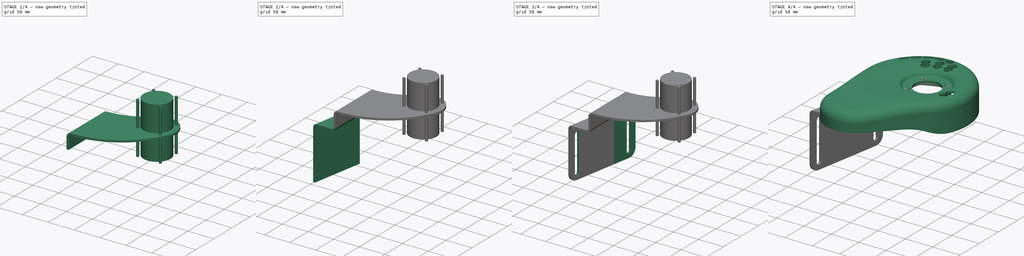
[diagram: build sequence overview — one tinted view per stage of 4, left to right]
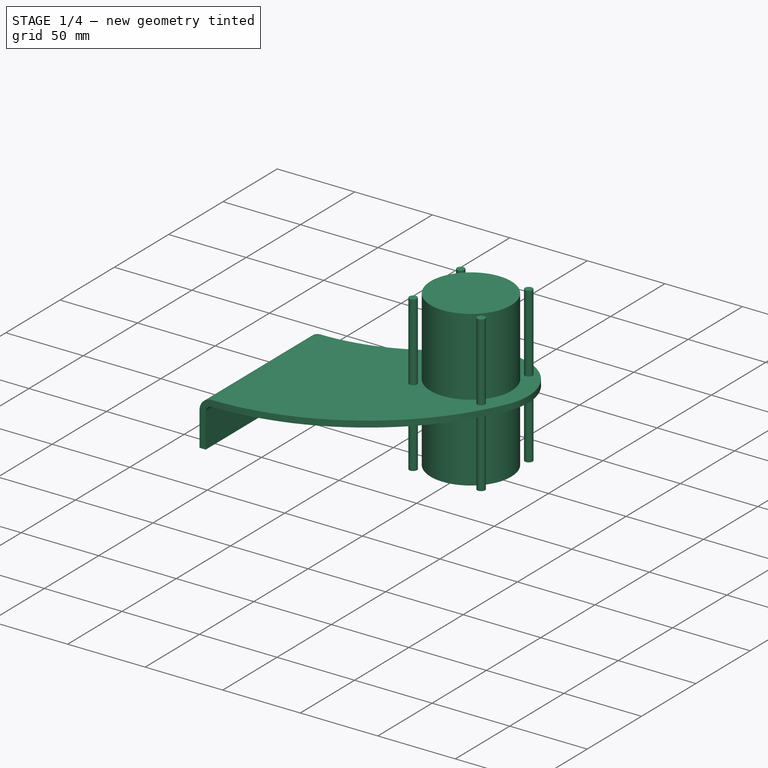
[diagram: stage 1 of 4 — iso view after this stage's code; geometry added in this stage tinted green]
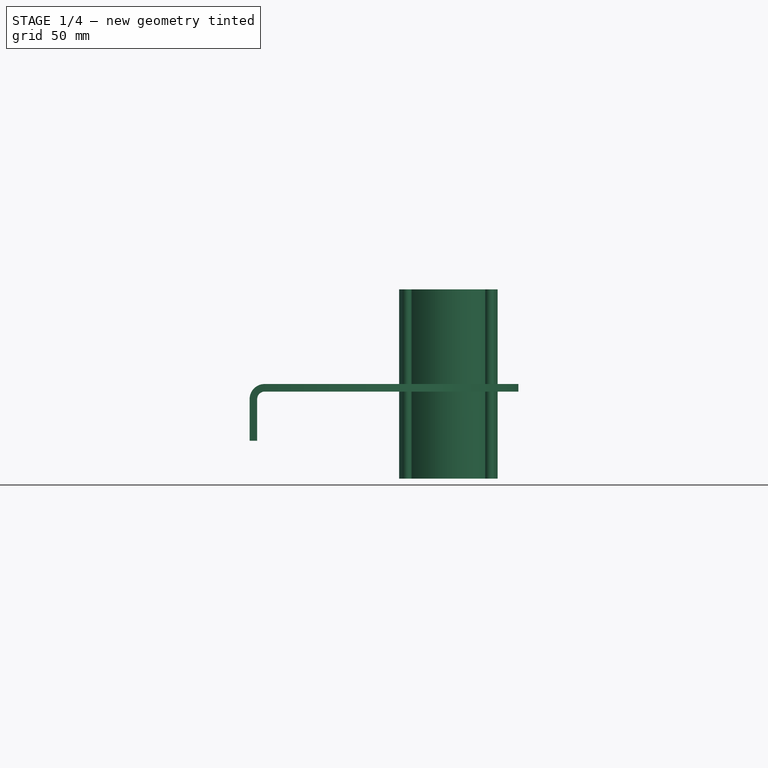
[diagram: stage 1 of 4 — front view after this stage's code; geometry added in this stage tinted green]
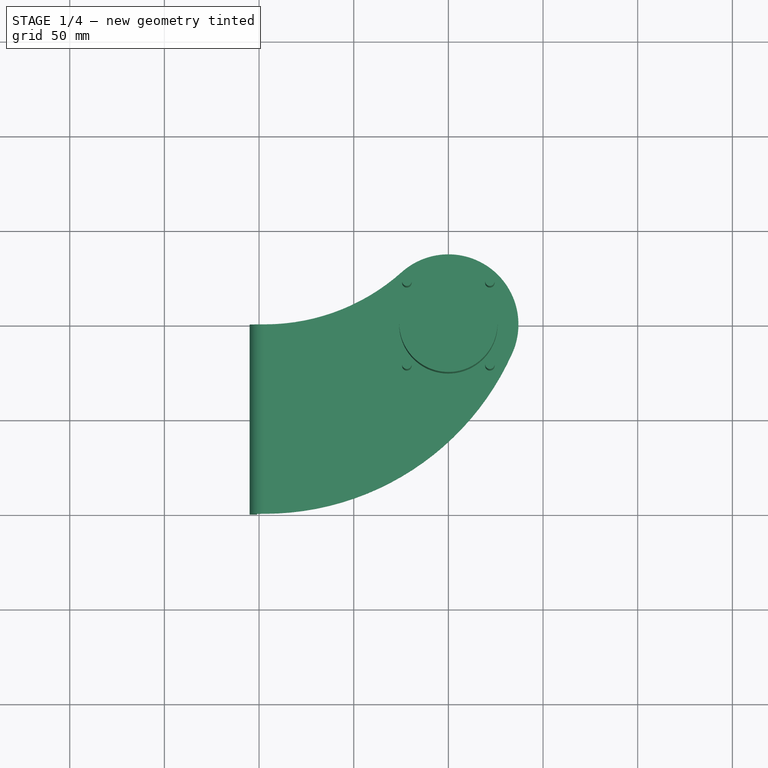
[diagram: stage 1 of 4 — top view after this stage's code; geometry added in this stage tinted green]
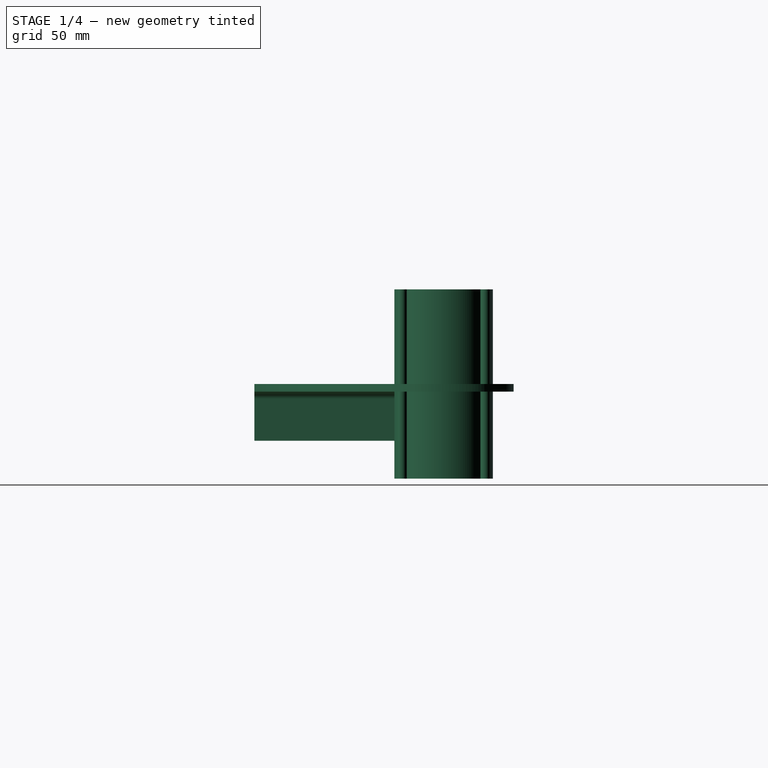
[diagram: stage 1 of 4 — right view after this stage's code; geometry added in this stage tinted green]
FCSTD DOCUMENT  (FreeCAD 0.17R6700 (Git))
Label: mounting_metal
License: All rights reserved
LicenseURL: http://en.wikipedia.org/wiki/All_rights_reserved
objects: Part::FeaturePython×5, Sketcher::SketchObject×5, Part::Feature×4, PartDesign::Pocket×3, PartDesign::Pad×2, App::DocumentObjectGroup×1, Part::Fillet×1, Part::Cut×1
note: 26 computed .brp shape members not serialized (recipe doc carries the construction recipe); baked Part::Feature solids carry a one-line shape summary decoded from their .brp

FEATURE [Sketcher::SketchObject] Sketch019
  sketch-geometry (5):
    g0: ArcOfCircle CenterX=0 CenterY=0 CenterZ=0 NormalX=0 NormalY=0 NormalZ=1 Radius=37 StartAngle=5.86442 EndAngle=8.5828
    g1: ArcOfCircle CenterX=-97 CenterY=108.649 CenterZ=0 NormalX=0 NormalY=0 NormalZ=1 Radius=108.649 StartAngle=4.71239 EndAngle=5.4412
    g2: ArcOfCircle CenterX=-97 CenterY=43.1746 CenterZ=0 NormalX=0 NormalY=0 NormalZ=1 Radius=143.175 StartAngle=4.71239 EndAngle=5.86442
    g3: LineSegment StartX=-97 StartY=-100 StartZ=0 EndX=-97 EndY=0 EndZ=0
    g4: LineSegment [constr] StartX=-97 StartY=43.1746 StartZ=0 EndX=-97 EndY=0 EndZ=0
  constraints (16):
    c: Coincident(g0,g-1)
    c: Radius(g0) = 37
    c: Coincident(g1,g0)
    c: Tangent(g1,g0)
    c: Coincident(g0,g2)
    c: Tangent(g0,g2)
    c: Coincident(g3,g2)
    c: Coincident(g3,g1)
    c: Coincident(g4,g1)
    c: PointOnObject(g1,g4)
    c: Coincident(g2,g4)
    c: Angle(g4) = -1.5708
    c: Parallel(g3,g4)
    c: Distance(g3) = 100
    c: DistanceX(g1,g-1) = 97
    c: DistanceY(g2,g-1) = 100
FEATURE [PartDesign::Pad] Pad005
  Length = 4
  Length2 = 100
  Reversed = true
  Sketch = -> Sketch019
  Type = 0
FEATURE [Part::FeaturePython] Bend003  # WARN: FeaturePython — macro-defined, semantics opaque (R4)
  angle = 90
  baseObject = -> Pad005 [Face3]
  gap1 = 0
  gap2 = 0
  invert = false
  length = 22
  radius = 4
  reliefd = 2
  reliefw = 0
FEATURE [Sketcher::SketchObject] Sketch014
  Placement = pos=(0,0,-50) rot=(0,0,1;0rad)
  sketch-geometry (5):
    g0: Circle CenterX=0 CenterY=0 CenterZ=0 NormalX=0 NormalY=0 NormalZ=1 Radius=26
    g1: Circle CenterX=21.93 CenterY=-21.93 CenterZ=0 NormalX=0 NormalY=0 NormalZ=1 Radius=2.5
    g2: Circle CenterX=21.93 CenterY=21.93 CenterZ=0 NormalX=0 NormalY=0 NormalZ=1 Radius=2.5
    g3: Circle CenterX=-21.93 CenterY=21.93 CenterZ=0 NormalX=0 NormalY=0 NormalZ=1 Radius=2.5
    g4: Circle CenterX=-21.93 CenterY=-21.93 CenterZ=0 NormalX=0 NormalY=0 NormalZ=1 Radius=2.5
  constraints (11):
    c: Coincident(g0,g-1)
    c: Equal(g3,g4)
    c: Equal(g4,g1)
    c: Equal(g1,g2)
    c: Symmetric(g2,g1,g-1)
    c: Symmetric(g1,g4,g-2)
    c: Symmetric(g4,g3,g-1)
    c: DistanceX(g3,g-1) = 21.93
    c: DistanceY(g-1,g3) = 21.93
    c: Radius(g3) = 2.5
    c: Radius(g0) = 26
FEATURE [PartDesign::Pad] Pad002  label="joystick_pocket001"
  Length = 100
  Length2 = 100
  Placement = pos=(0,0,-50) rot=(0,0,1;0rad)
  Sketch = -> Sketch014
  Type = 0
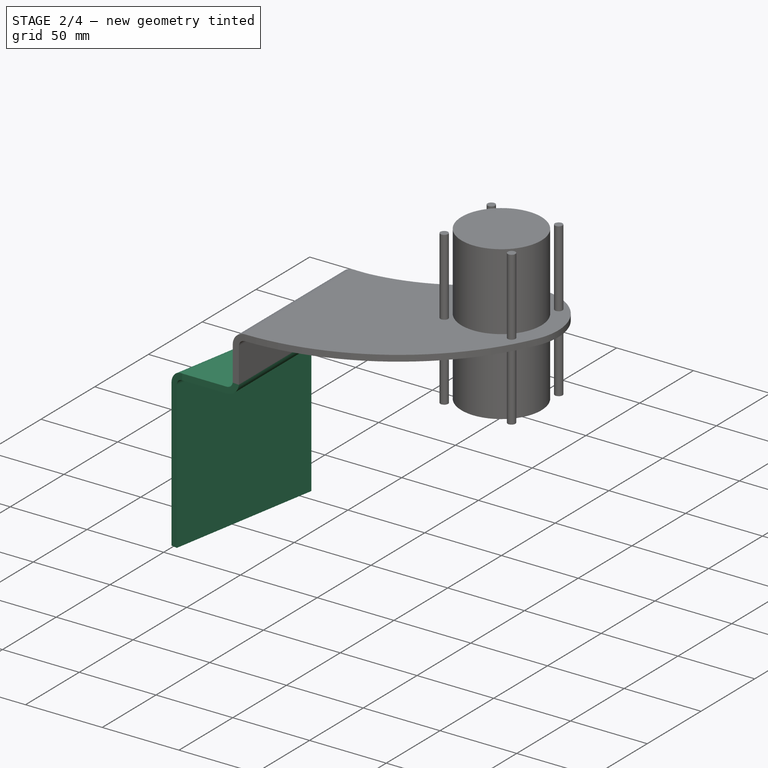
[diagram: stage 2 of 4 — iso view after this stage's code; geometry added in this stage tinted green]
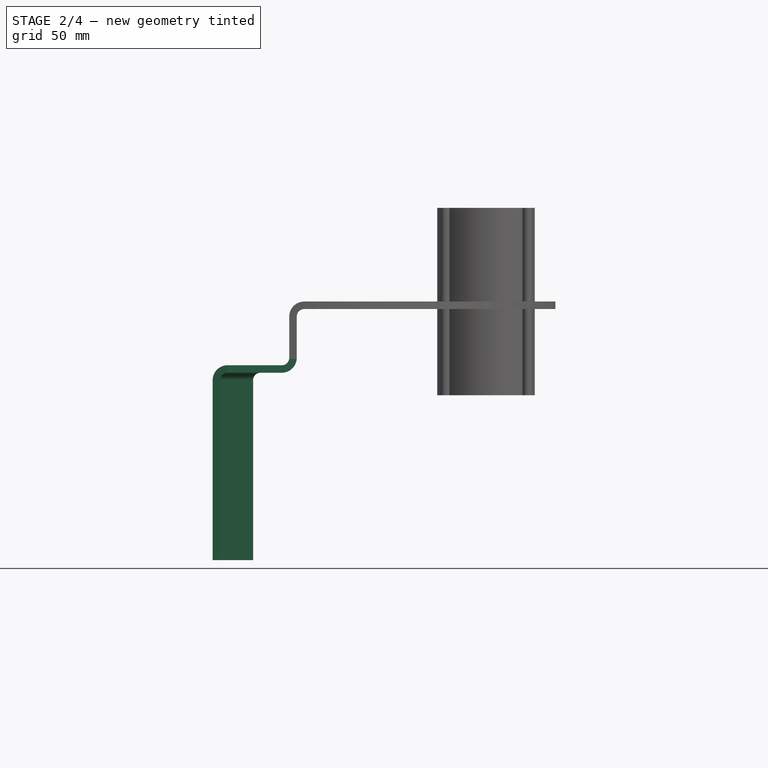
[diagram: stage 2 of 4 — front view after this stage's code; geometry added in this stage tinted green]
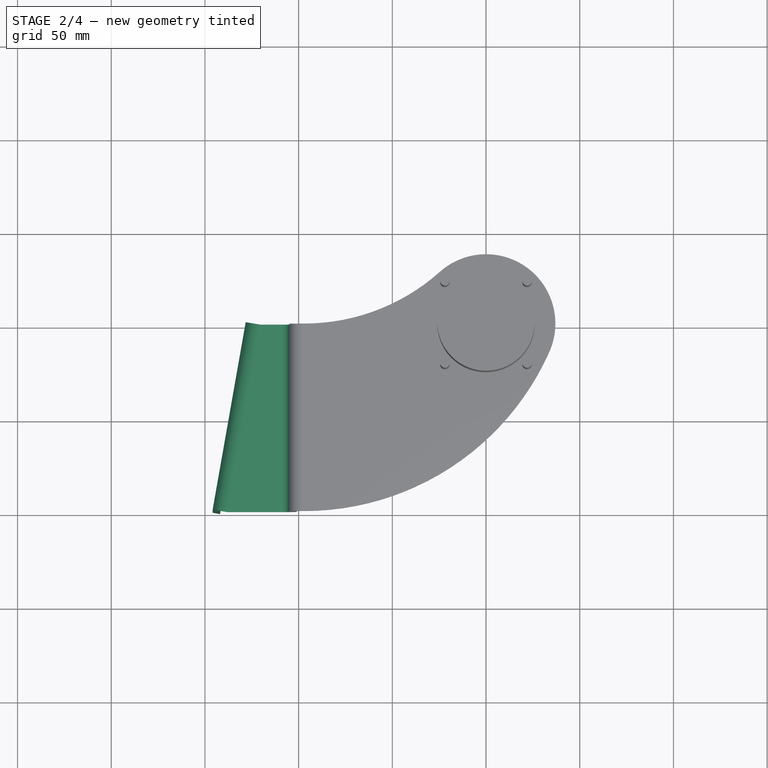
[diagram: stage 2 of 4 — top view after this stage's code; geometry added in this stage tinted green]
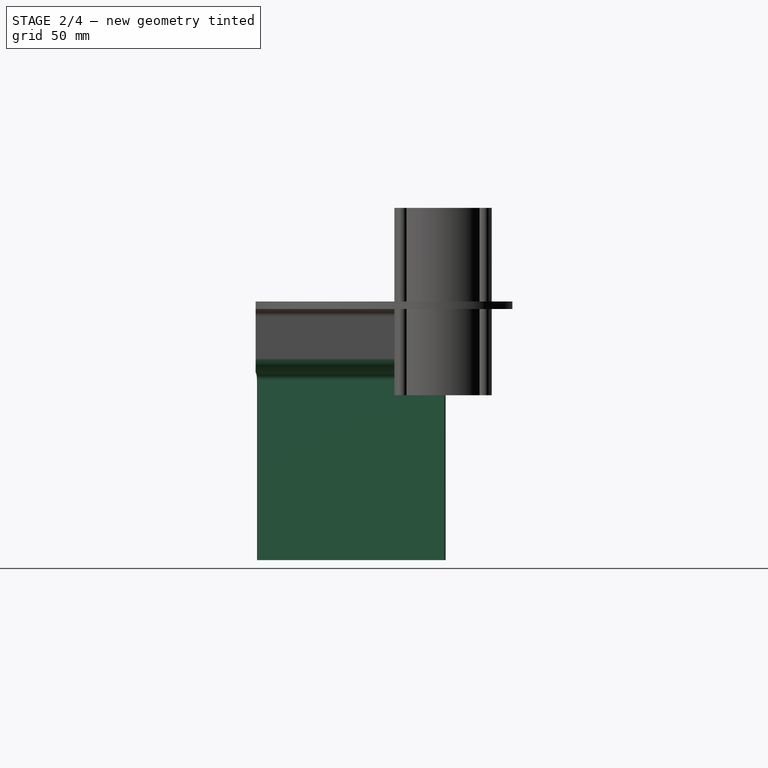
[diagram: stage 2 of 4 — right view after this stage's code; geometry added in this stage tinted green]
FEATURE [Part::FeaturePython] Bend004  # WARN: FeaturePython — macro-defined, semantics opaque (R4)
  angle = 90
  baseObject = -> Bend003 [Face1]
  gap1 = 0
  gap2 = 0
  invert = true
  length = 29
  radius = 4
  reliefd = 1
  reliefw = 0.5
FEATURE [Sketcher::SketchObject] Sketch
  ExternalGeometry = -> [Bend004]
  Placement = pos=(0,0,-34) rot=(0,0,1;0rad)
  Support = -> Bend004 [Face4]
  sketch-geometry (3):
    g0: LineSegment StartX=-138 StartY=4e-12 StartZ=0 EndX=-138 EndY=-100 EndZ=0
    g1: LineSegment StartX=-138 StartY=-100 StartZ=0 EndX=-120.367 EndY=2e-12 EndZ=0
    g2: LineSegment StartX=-120.367 StartY=2e-12 StartZ=0 EndX=-138 EndY=4e-12 EndZ=0
  constraints (7):
    c: Coincident(g-4,g0)
    c: Coincident(g0,g-5)
    c: Coincident(g0,g1)
    c: PointOnObject(g1,g-4)
    c: Coincident(g1,g2)
    c: Coincident(g2,g0)
    c: Angle(g1) = 1.39626
FEATURE [PartDesign::Pocket] Pocket
  Length = 5
  Sketch = -> Sketch
  Type = 1
FEATURE [Part::FeaturePython] Bend  # WARN: FeaturePython — macro-defined, semantics opaque (R4)
  angle = 90
  baseObject = -> Pocket [Face4]
  gap1 = 0
  gap2 = 0
  invert = false
  length = 96
  radius = 4
  reliefd = 1
  reliefw = 0.5
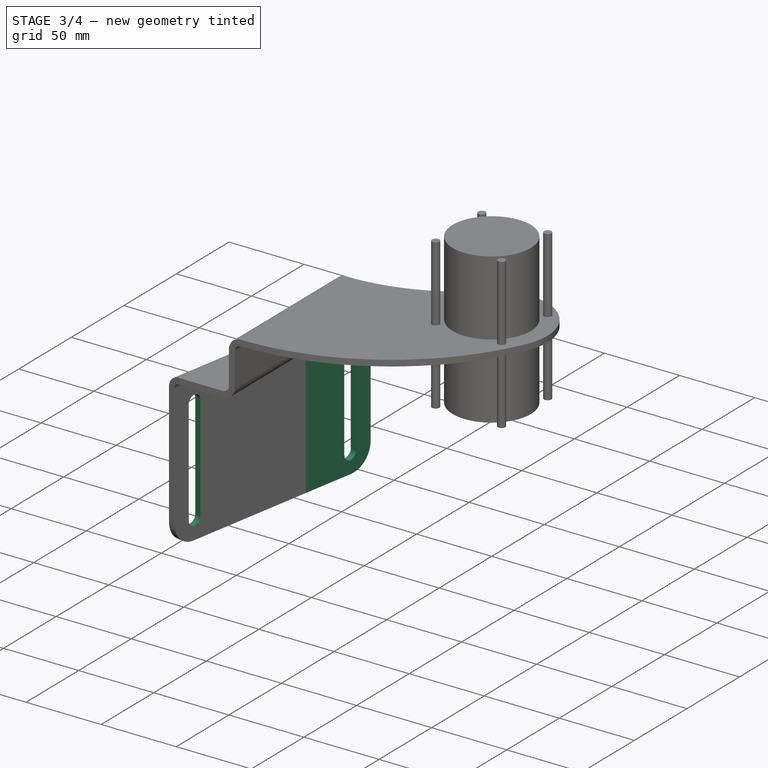
[diagram: stage 3 of 4 — iso view after this stage's code; geometry added in this stage tinted green]
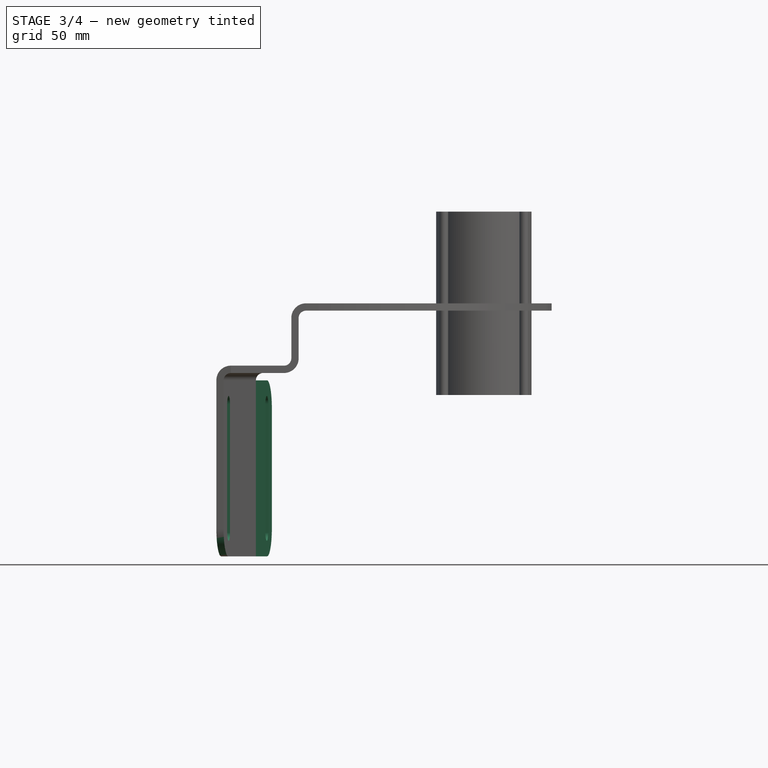
[diagram: stage 3 of 4 — front view after this stage's code; geometry added in this stage tinted green]
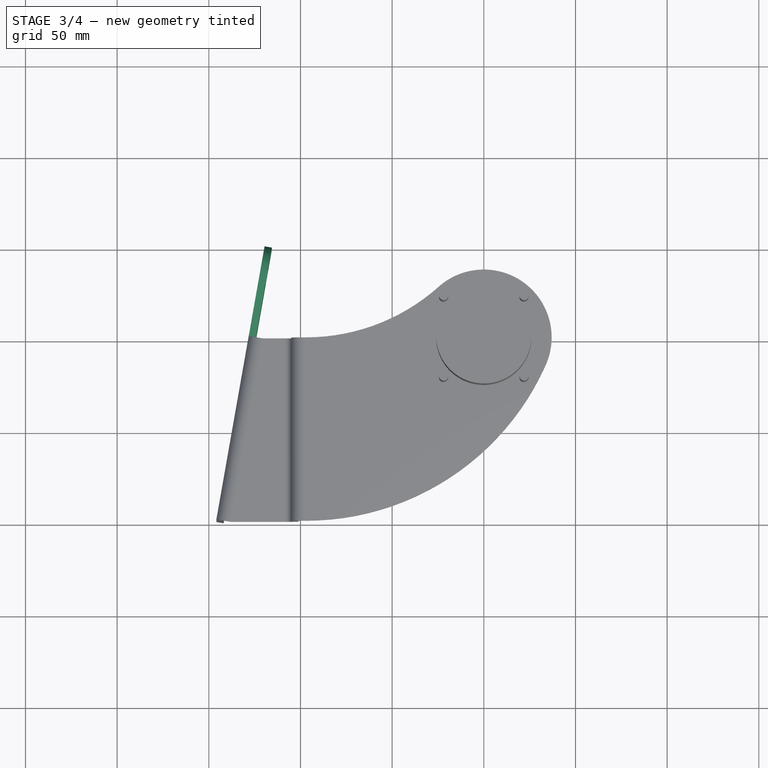
[diagram: stage 3 of 4 — top view after this stage's code; geometry added in this stage tinted green]
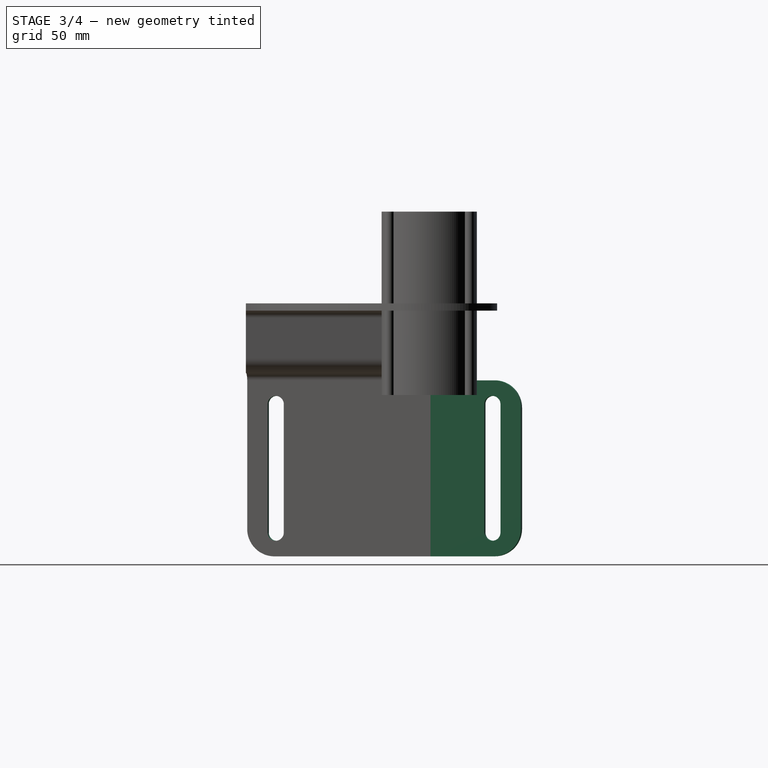
[diagram: stage 3 of 4 — right view after this stage's code; geometry added in this stage tinted green]
FEATURE [Part::FeaturePython] Extrude  # WARN: FeaturePython — macro-defined, semantics opaque (R4)
  baseObject = -> Bend [Face3]
  gap1 = 0
  gap2 = 0
  length = 50
FEATURE [Part::Fillet] Fillet
  Base = -> Extrude
  Edges = 3 edges r=15: [Edge7,Edge10,Edge20]
FEATURE [Sketcher::SketchObject] Sketch020
  ExternalGeometry = -> [Fillet]
  Placement = pos=(-124.616,21.9732,0) rot=(-0.510274,0.60812,0.60812;4.08526rad)
  Support = -> Fillet [Face1]
  sketch-geometry (11):
    g0: ArcOfCircle CenterX=-13.3271 CenterY=-55 CenterZ=0 NormalX=0 NormalY=0 NormalZ=1 Radius=4.5 StartAngle=0 EndAngle=3.14159
    g1: ArcOfCircle CenterX=-13.3271 CenterY=-125 CenterZ=0 NormalX=0 NormalY=0 NormalZ=1 Radius=4.5 StartAngle=3.14159 EndAngle=6.28319
    g2: LineSegment StartX=-17.8271 StartY=-55 StartZ=0 EndX=-17.8271 EndY=-125 EndZ=0
    g3: LineSegment StartX=-8.82711 StartY=-55 StartZ=0 EndX=-8.82711 EndY=-125 EndZ=0
    g4: ArcOfCircle CenterX=106.673 CenterY=-55 CenterZ=0 NormalX=0 NormalY=0 NormalZ=1 Radius=4.5 StartAngle=0 EndAngle=3.14159
    g5: ArcOfCircle CenterX=106.673 CenterY=-125 CenterZ=0 NormalX=0 NormalY=0 NormalZ=1 Radius=4.5 StartAngle=3.14159 EndAngle=6.28319
    g6: LineSegment StartX=102.173 StartY=-55 StartZ=0 EndX=102.173 EndY=-125 EndZ=0
    g7: LineSegment StartX=111.173 StartY=-55 StartZ=0 EndX=111.173 EndY=-125 EndZ=0
    g8: LineSegment [constr] StartX=-29.0984 StartY=-90 StartZ=0 EndX=122.444 EndY=-90 EndZ=0
    g9: LineSegment [constr] StartX=46.6729 StartY=-42 StartZ=0 EndX=46.6729 EndY=-138 EndZ=0
    g10: LineSegment [constr] StartX=46.6729 StartY=-42 StartZ=0 EndX=20.9016 EndY=-42 EndZ=0
  constraints (28):
    c: Tangent(g0,g3) = 1.5708
    c: Tangent(g0,g2) = -1.5708
    c: Tangent(g2,g1) = -1.5708
    c: Tangent(g3,g1) = 1.5708
    c: Vertical(g2)
    c: Equal(g0,g1)
    c: Tangent(g4,g7) = 1.5708
    c: Tangent(g4,g6) = -1.5708
    c: Tangent(g6,g5) = -1.5708
    c: Tangent(g7,g5) = 1.5708
    c: Vertical(g6)
    c: Equal(g4,g5)
    c: PointOnObject(g8,g-4)
    c: PointOnObject(g8,g-7)
    c: Symmetric(g4,g0,g9)
    c: Equal(g0,g4)
    c: Equal(g6,g3)
    c: Radius(g0) = 4.5
    c: DistanceX(g0,g4) = 120
    c: Symmetric(g1,g0,g8)
    c: Vertical(g9)
    c: Symmetric(g-4,g-7,g9)
    c: Symmetric(g-4,g-4,g8)
    c: DistanceY(g1,g0) = 70
    c: PointOnObject(g9,g-6)
    c: Coincident(g10,g9)
    c: Coincident(g10,g-3)
    c: Horizontal(g10)
FEATURE [PartDesign::Pocket] Pocket001
  Length = 5
  Sketch = -> Sketch020
  Type = 1
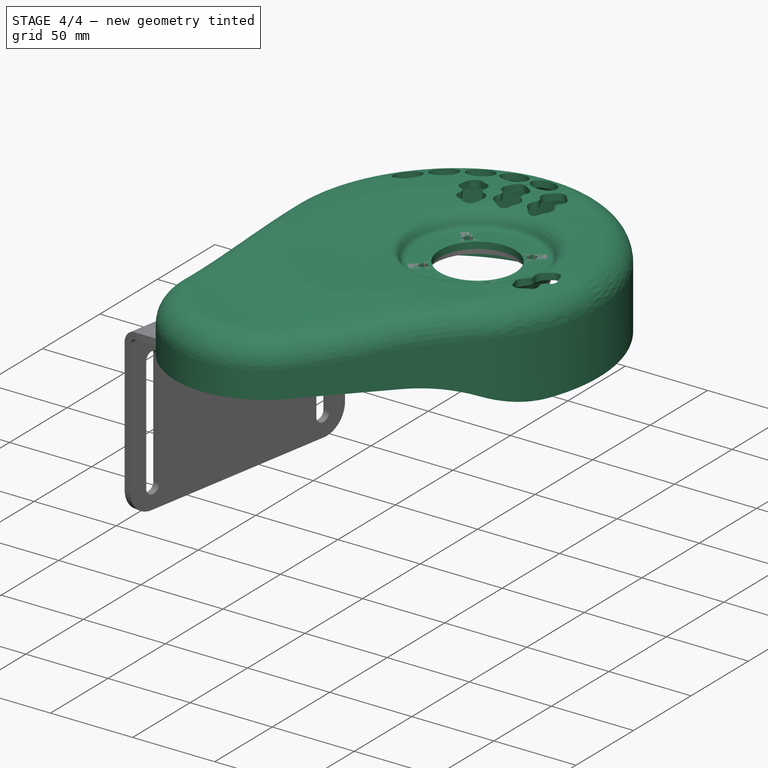
[diagram: stage 4 of 4 — iso view after this stage's code; geometry added in this stage tinted green]
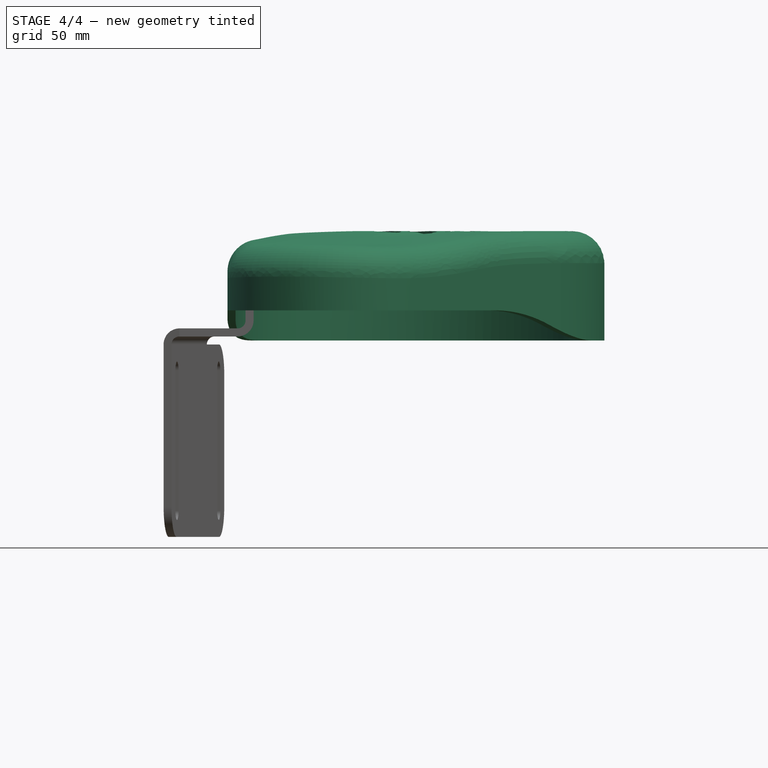
[diagram: stage 4 of 4 — front view after this stage's code; geometry added in this stage tinted green]
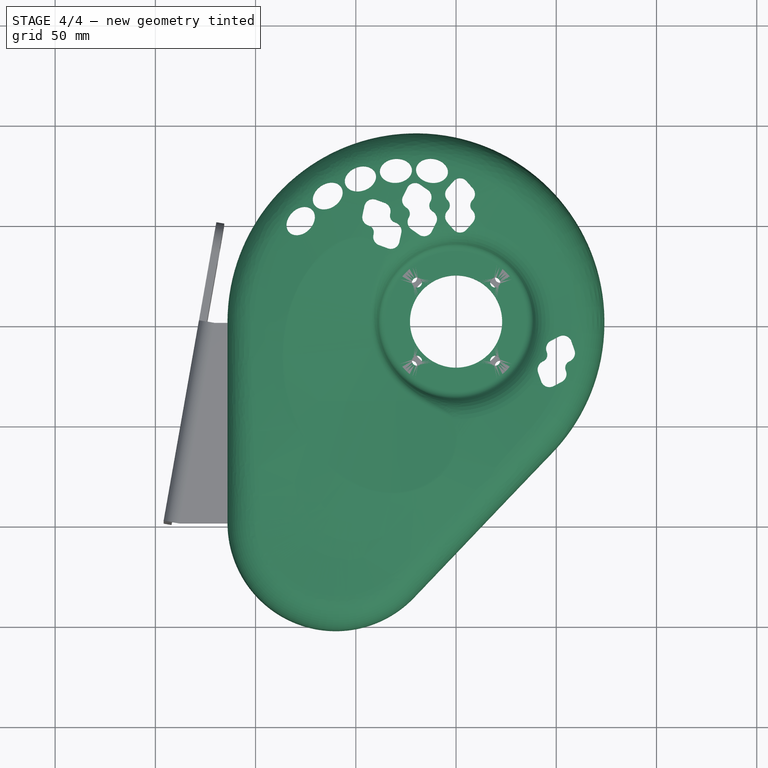
[diagram: stage 4 of 4 — top view after this stage's code; geometry added in this stage tinted green]
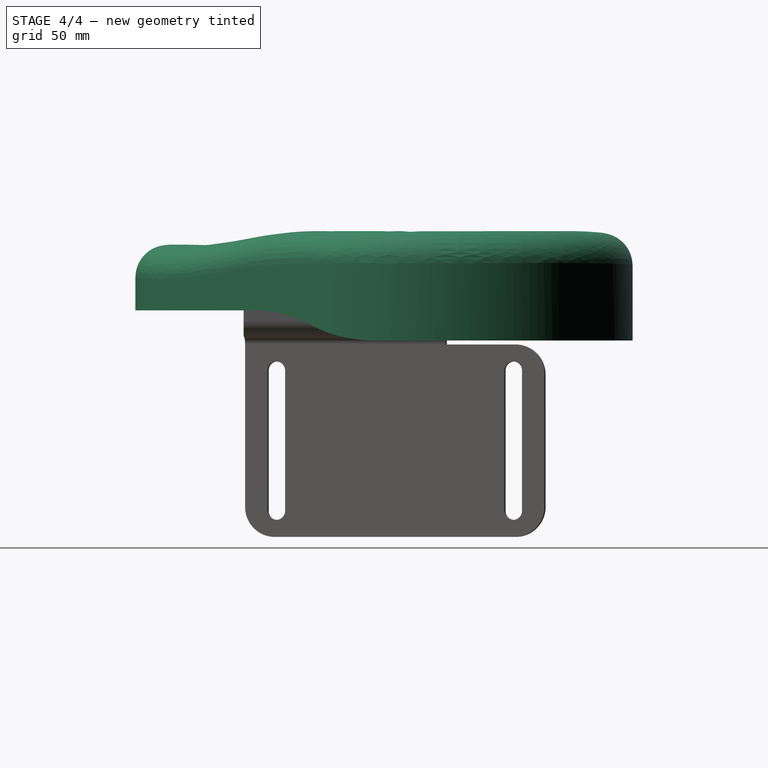
[diagram: stage 4 of 4 — right view after this stage's code; geometry added in this stage tinted green]
FEATURE [Part::Feature] Part__Feature  label="joy"
  Placement = pos=(0,0,-16.1) rot=(0.57735,-0.57735,-0.57735;2.0944rad)
  shape: bbox 17.66 x 57.66 x 25.13 mm, 562 faces (baked)
FEATURE [Part::Feature] Part__Feature001  label="joy001"
  Placement = pos=(0,0,-16.1) rot=(0.57735,-0.57735,-0.57735;2.0944rad)
  shape: bbox 74.63 x 74.63 x 129.8 mm, 2403 faces (baked)
FEATURE [Part::Feature] Part__Feature002  label="joy002"
  Placement = pos=(0,0,-16.1) rot=(0.57735,-0.57735,-0.57735;2.0944rad)
  shape: bbox 11.11 x 11.11 x 64.77 mm, 36 faces (baked)
FEATURE [Part::Feature] Part__Feature003  label="joy003"
  Placement = pos=(0,0,-16.1) rot=(0.57735,-0.57735,-0.57735;2.0944rad)
  shape: bbox 23.77 x 72.14 x 51.34 mm, 195 faces (baked)
FEATURE [App::DocumentObjectGroup] Group  label="joystick"
  Group = -> [Part__Feature,Part__Feature001,Part__Feature002,Part__Feature003]
FEATURE [Part::FeaturePython] ver3_01  label="collar"  # a2plus imported part (geometry in sourceFile) (typed FeaturePython)
  fixedPosition = true
  sourceFile = <userpath>/uw/keypad/hw/ver3.fcstd
  timeLastImport = 1.49985e+09
  updateColors = true
FEATURE [Part::Cut] Cut
  Base = -> Pocket001
  Tool = -> Pad002
FEATURE [Sketcher::SketchObject] Sketch021
  ExternalGeometry = -> [Cut]
  Placement = pos=(-101,1e-11,0) rot=(0.57735,0.57735,0.57735;2.0944rad)
  Support = -> Cut [Face36]
  sketch-geometry (10):
    g0: LineSegment [constr] StartX=-85 StartY=-19 StartZ=0 EndX=-15 EndY=-19 EndZ=0
    g1: LineSegment [constr] StartX=-50 StartY=-8 StartZ=0 EndX=-50 EndY=-30 EndZ=0
    g2: ArcOfCircle CenterX=-85 CenterY=-17 CenterZ=0 NormalX=0 NormalY=0 NormalZ=1 Radius=2.75 StartAngle=0 EndAngle=3.14159
    g3: ArcOfCircle CenterX=-85 CenterY=-21 CenterZ=0 NormalX=0 NormalY=0 NormalZ=1 Radius=2.75 StartAngle=3.14159 EndAngle=6.28319
    g4: LineSegment StartX=-87.75 StartY=-17 StartZ=0 EndX=-87.75 EndY=-21 EndZ=0
    g5: LineSegment StartX=-82.25 StartY=-17 StartZ=0 EndX=-82.25 EndY=-21 EndZ=0
    g6: ArcOfCircle CenterX=-15 CenterY=-17 CenterZ=0 NormalX=0 NormalY=0 NormalZ=1 Radius=2.75 StartAngle=0 EndAngle=3.14159
    g7: ArcOfCircle CenterX=-15 CenterY=-21 CenterZ=0 NormalX=0 NormalY=0 NormalZ=1 Radius=2.75 StartAngle=3.14159 EndAngle=6.28319
    g8: LineSegment StartX=-17.75 StartY=-17 StartZ=0 EndX=-17.75 EndY=-21 EndZ=0
    g9: LineSegment StartX=-12.25 StartY=-17 StartZ=0 EndX=-12.25 EndY=-21 EndZ=0
  constraints (24):
    c: PointOnObject(g1,g-6)
    c: PointOnObject(g1,g-5)
    c: Symmetric(g-5,g-5,g1)
    c: DistanceX(g0,g0) = 70
    c: Tangent(g2,g5) = 1.5708
    c: Tangent(g2,g4) = -1.5708
    c: Tangent(g4,g3) = -1.5708
    c: Tangent(g5,g3) = 1.5708
    c: Vertical(g4)
    c: Equal(g2,g3)
    c: Radius(g3) = 2.75
    c: Symmetric(g2,g3,g0)
    c: Symmetric(g0,g0,g1)
    c: DistanceY(g4,g4) = 4
    c: Tangent(g6,g9) = 1.5708
    c: Tangent(g6,g8) = -1.5708
    c: Tangent(g8,g7) = -1.5708
    c: Tangent(g9,g7) = 1.5708
    c: Vertical(g8)
    c: Equal(g6,g7)
    c: Symmetric(g7,g6,g0)
    c: Equal(g8,g5)
    c: Equal(g2,g6)
    c: DistanceY(g0,g-6) = 11
FEATURE [PartDesign::Pocket] Pocket002
  Length = 5
  Sketch = -> Sketch021
  Type = 1
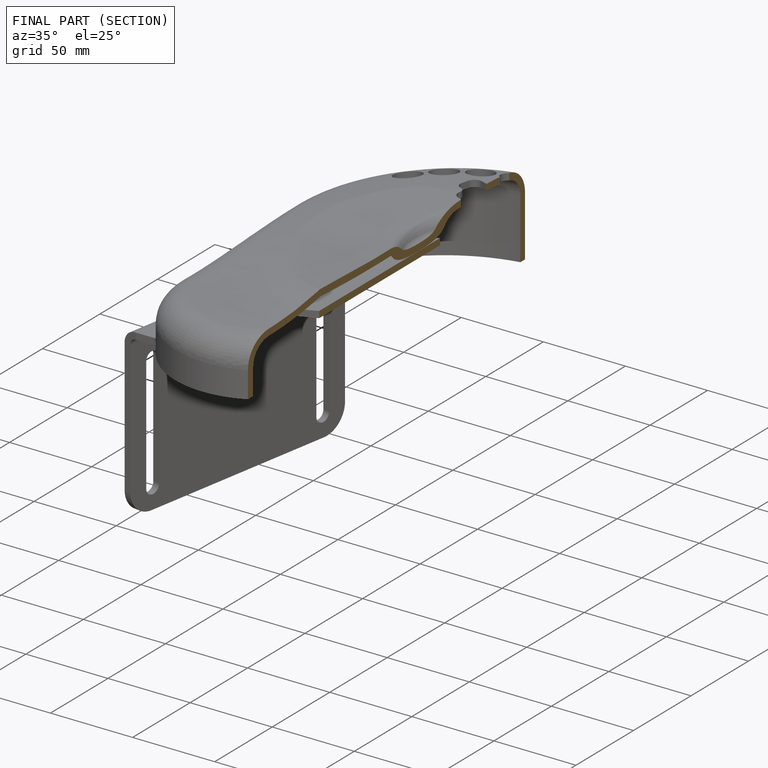
[diagram: finished part — half-section view (interior)]
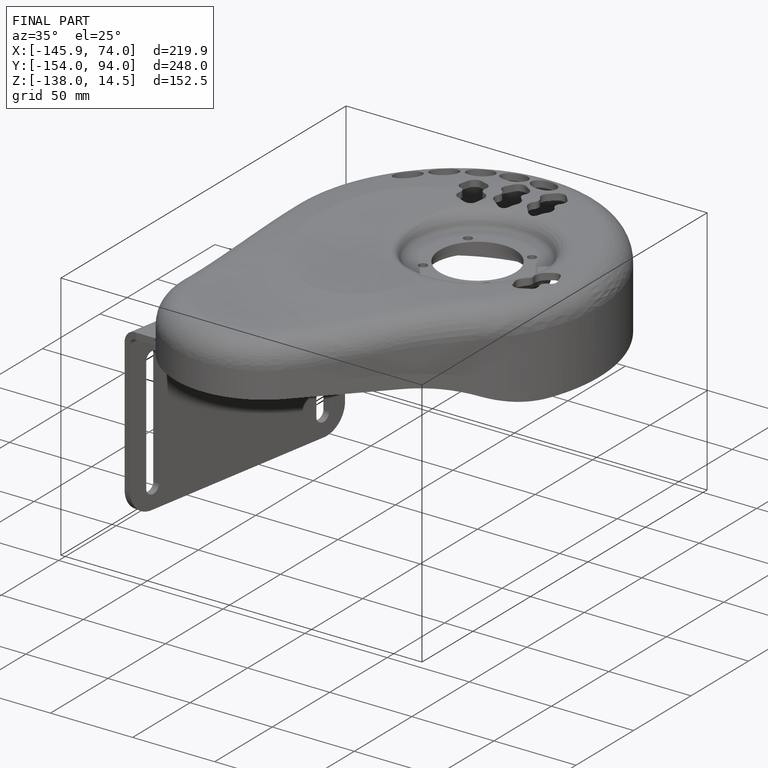
[diagram: finished part — iso view with bounding-box wireframe]
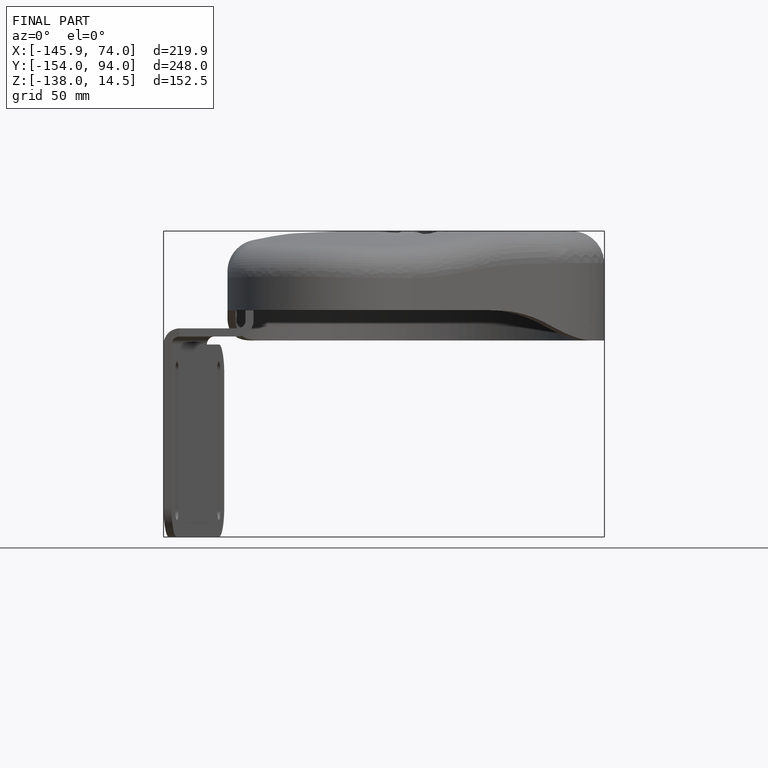
[diagram: finished part — front view with bounding-box wireframe]
